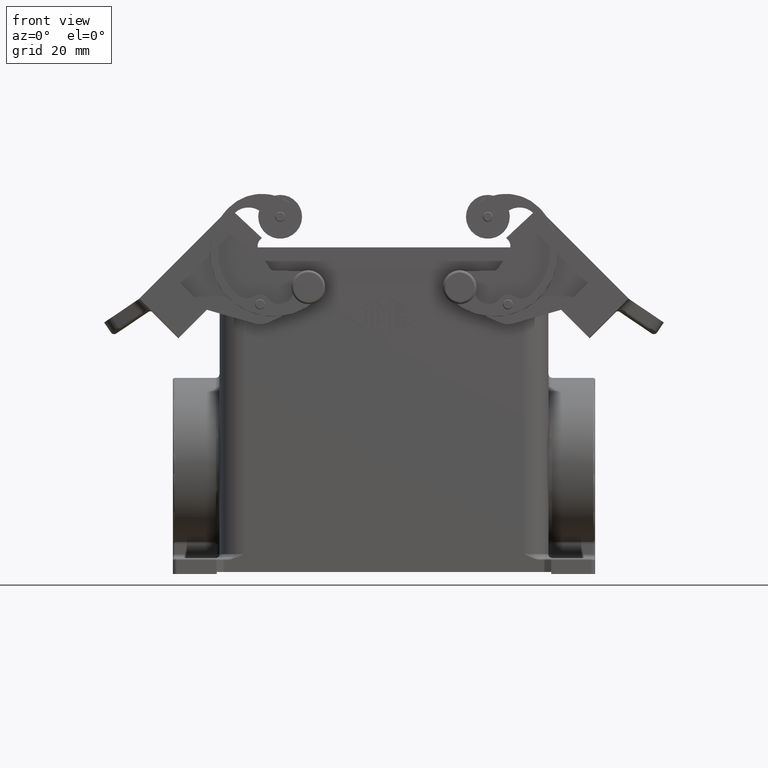
[diagram: clean part render]
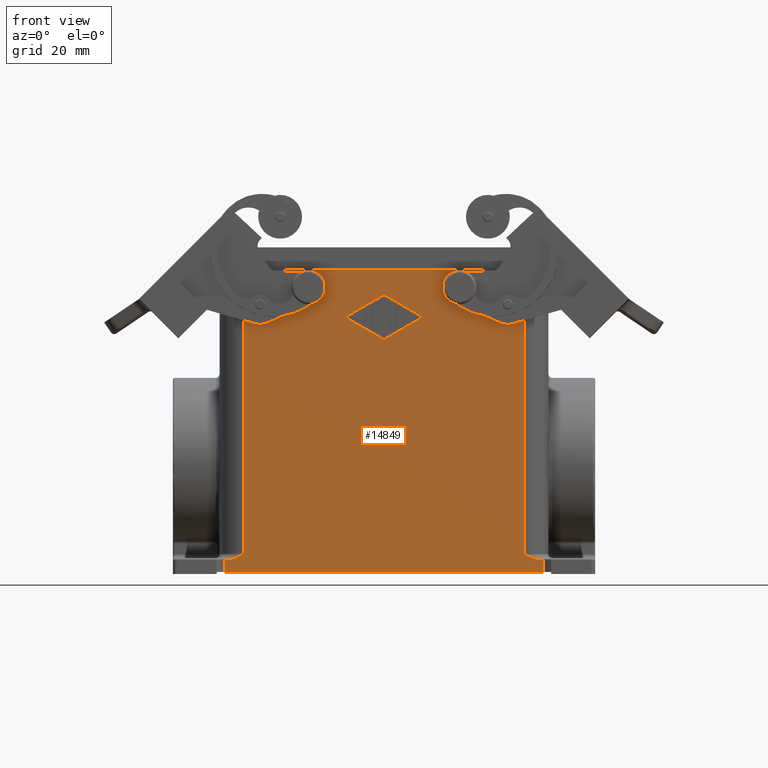
[diagram: same view with one face highlighted and labeled with its STEP entity id]
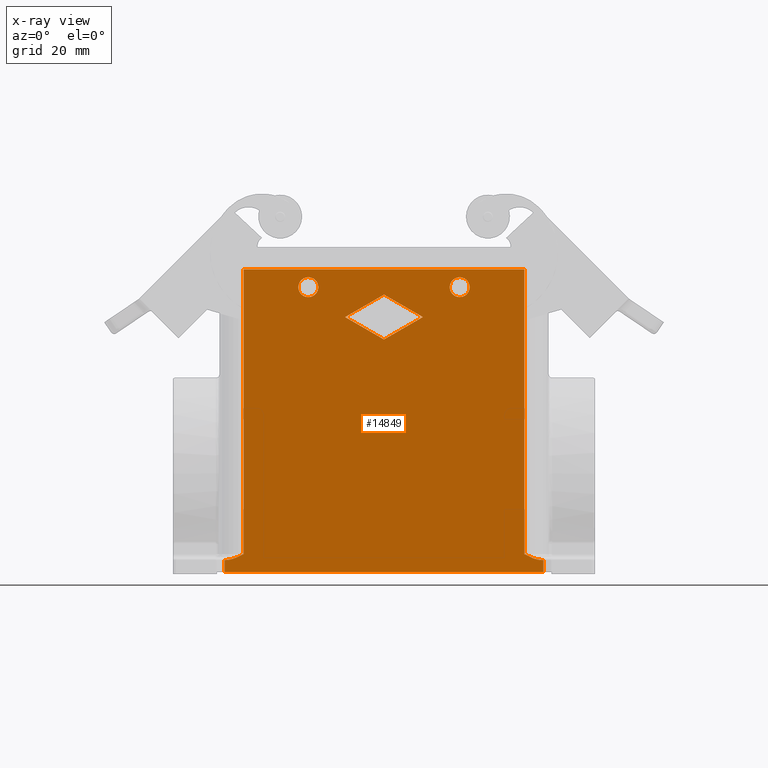
[diagram: x-ray of the same camera — body ghosted, the highlighted face saturated]
A machine part, front view. The second image highlights one B-rep face of the part: STEP entity #14849.
The next image is the same camera in x-ray: the body ghosted, the highlighted face saturated — about 0% of this face is hidden behind the body in this view.
In plain terms, the highlighted planar face has unit normal (0, -1, 0).
Its self-contained STEP definition (entity closure, byte-faithful):
#1136=CARTESIAN_POINT('',(-19.000000000000004,-27.649999999999991,22.0));
#1137=VERTEX_POINT('',#1136);
#1146=CARTESIAN_POINT('',(-19.000000000000004,-27.649999999999086,17.0));
#1147=VERTEX_POINT('',#1146);
#1148=CARTESIAN_POINT('',(-19.000000000000004,-27.649999999999991,19.500000000000000));
#1149=DIRECTION('',(0.0,1.0,3.626846E-013));
#1150=DIRECTION('',(0.0,-3.626846E-013,1.0));
#1151=AXIS2_PLACEMENT_3D('',#1148,#1149,#1150);
#1152=CIRCLE('',#1151,2.500000000000000);
#1153=EDGE_CURVE('',#1147,#1137,#1152,.T.);
#2407=CARTESIAN_POINT('',(19.000000000000004,-27.649999999999991,22.0));
#2408=VERTEX_POINT('',#2407);
#2417=CARTESIAN_POINT('',(19.000000000000004,-27.649999999999086,17.0));
#2418=VERTEX_POINT('',#2417);
#2419=CARTESIAN_POINT('',(19.000000000000004,-27.649999999999991,19.500000000000000));
#2420=DIRECTION('',(0.0,1.0,3.626846E-013));
#2421=DIRECTION('',(0.0,-3.626846E-013,1.0));
#2422=AXIS2_PLACEMENT_3D('',#2419,#2420,#2421);
#2423=CIRCLE('',#2422,2.500000000000000);
#2424=EDGE_CURVE('',#2418,#2408,#2423,.T.);
#9040=CARTESIAN_POINT('',(39.580127018922205,-27.649999999999991,-49.000000000000014));
#9041=VERTEX_POINT('',#9040);
#9049=CARTESIAN_POINT('',(39.999999999999993,-27.649999999999991,-49.000000000000014));
#9050=VERTEX_POINT('',#9049);
#9051=CARTESIAN_POINT('',(39.580127018922205,-27.649999999999991,-49.000000000000014));
#9052=DIRECTION('',(1.0,0.0,0.0));
#9053=VECTOR('',#9052,0.419872981077788);
#9054=LINE('',#9051,#9053);
#9055=EDGE_CURVE('',#9041,#9050,#9054,.T.);
#9671=CARTESIAN_POINT('',(-40.000000000000036,-27.650000000000002,-52.000000000000014));
#9672=VERTEX_POINT('',#9671);
#9680=CARTESIAN_POINT('',(-40.000000000000036,-27.650000000000006,-49.000000000000014));
#9681=VERTEX_POINT('',#9680);
#9682=CARTESIAN_POINT('',(-40.000000000000036,-27.650000000000002,-52.000000000000014));
#9683=DIRECTION('',(0.0,0.0,1.0));
#9684=VECTOR('',#9683,3.0);
#9685=LINE('',#9682,#9684);
#9686=EDGE_CURVE('',#9672,#9681,#9685,.T.);
#10923=CARTESIAN_POINT('',(-39.580127018922198,-27.650000000000006,-49.000000000000014));
#10924=VERTEX_POINT('',#10923);
#10925=CARTESIAN_POINT('',(-40.000000000000036,-27.650000000000006,-49.000000000000014));
#10926=DIRECTION('',(1.0,0.0,0.0));
#10927=VECTOR('',#10926,0.419872981077837);
#10928=LINE('',#10925,#10927);
#10929=EDGE_CURVE('',#9681,#10924,#10928,.T.);
#10992=CARTESIAN_POINT('',(-35.249999999999993,-27.650000000000006,-47.500000000000014));
#10993=VERTEX_POINT('',#10992);
#10994=CARTESIAN_POINT('',(-39.580127018922198,-27.650000000000006,-49.000000000000014));
#10995=CARTESIAN_POINT('',(-39.387759683819795,-27.650000000000006,-49.000000000000014));
#10996=CARTESIAN_POINT('',(-39.195205686228242,-27.650000000000006,-48.985904331566836));
#10997=CARTESIAN_POINT('',(-38.697237690833667,-27.650000000000006,-48.920340415720645));
#10998=CARTESIAN_POINT('',(-38.393379681325477,-27.650000000000006,-48.851450247678599));
#10999=CARTESIAN_POINT('',(-37.623310437845149,-27.650000000000006,-48.625605716058111));
#11000=CARTESIAN_POINT('',(-37.167194820397690,-27.650000000000006,-48.441192238088952));
#11001=CARTESIAN_POINT('',(-36.221236559212514,-27.650000000000006,-48.007439779020153));
#11002=CARTESIAN_POINT('',(-35.734263786464993,-27.650000000000006,-47.752898514435991));
#11003=CARTESIAN_POINT('',(-35.250000000000000,-27.650000000000006,-47.500000000000014));
#11004=B_SPLINE_CURVE_WITH_KNOTS('',3,(#10994,#10995,#10996,#10997,#10998,#10999,#11000,#11001,#11002,#11003),.UNSPECIFIED.,.F.,.U.,(4,2,2,2,4),(0.0,0.057710200530721,0.150046521379873,0.297784634738518,0.461681604245765),.UNSPECIFIED.);
#11005=EDGE_CURVE('',#10924,#10993,#11004,.T.);
#12228=CARTESIAN_POINT('',(35.250000000000000,-27.649999999999991,-47.500000000000014));
#12229=VERTEX_POINT('',#12228);
#12243=CARTESIAN_POINT('',(35.250000000000007,-27.649999999999991,-47.500000000000014));
#12244=CARTESIAN_POINT('',(35.734263910800728,-27.649999999999991,-47.752898579368086));
#12245=CARTESIAN_POINT('',(36.221235745168173,-27.649999999999991,-48.007439376338752));
#12246=CARTESIAN_POINT('',(37.167194230333386,-27.649999999999991,-48.441191994040942));
#12247=CARTESIAN_POINT('',(37.623309955738335,-27.649999999999991,-48.625605547628162));
#12248=CARTESIAN_POINT('',(38.393379380221418,-27.649999999999991,-48.851450176270397));
#12249=CARTESIAN_POINT('',(38.697237465468675,-27.649999999999991,-48.920340376758737));
#12250=CARTESIAN_POINT('',(39.195205587353641,-27.649999999999991,-48.985904324354763));
#12251=CARTESIAN_POINT('',(39.387759634428903,-27.649999999999991,-49.000000000000014));
#12252=CARTESIAN_POINT('',(39.580127018922205,-27.649999999999991,-49.000000000000014));
#12253=B_SPLINE_CURVE_WITH_KNOTS('',3,(#12243,#12244,#12245,#12246,#12247,#12248,#12249,#12250,#12251,#12252),.UNSPECIFIED.,.F.,.U.,(4,2,2,2,4),(-0.001048775446244,0.162848236142045,0.310586387432898,0.402922731989680,0.460632947337670),.UNSPECIFIED.);
#12254=EDGE_CURVE('',#12229,#9041,#12253,.T.);
#13389=CARTESIAN_POINT('',(35.250000000000000,-27.649999999999991,24.0));
#13390=VERTEX_POINT('',#13389);
#13398=CARTESIAN_POINT('',(35.250000000000000,-27.649999999999991,24.0));
#13399=DIRECTION('',(0.0,0.0,-1.0));
#13400=VECTOR('',#13399,71.500000000000014);
#13401=LINE('',#13398,#13400);
#13402=EDGE_CURVE('',#13390,#12229,#13401,.T.);
#14284=CARTESIAN_POINT('',(-35.249999999999993,-27.650000000000006,24.0));
#14285=VERTEX_POINT('',#14284);
#14286=CARTESIAN_POINT('',(-35.249999999999993,-27.650000000000006,24.0));
#14287=DIRECTION('',(0.0,0.0,-1.0));
#14288=VECTOR('',#14287,71.500000000000014);
#14289=LINE('',#14286,#14288);
#14290=EDGE_CURVE('',#14285,#10993,#14289,.T.);
#14421=CARTESIAN_POINT('',(39.999999999999993,-27.649999999999988,-52.000000000000014));
#14422=VERTEX_POINT('',#14421);
#14430=CARTESIAN_POINT('',(39.999999999999993,-27.649999999999988,-52.000000000000014));
#14431=DIRECTION('',(-1.0,0.0,0.0));
#14432=VECTOR('',#14431,80.000000000000028);
#14433=LINE('',#14430,#14432);
#14434=EDGE_CURVE('',#14422,#9672,#14433,.T.);
#14578=CARTESIAN_POINT('',(39.999999999999993,-27.649999999999991,-49.000000000000014));
#14579=DIRECTION('',(0.0,0.0,-1.0));
#14580=VECTOR('',#14579,3.0);
#14581=LINE('',#14578,#14580);
#14582=EDGE_CURVE('',#9050,#14422,#14581,.T.);
#14773=CARTESIAN_POINT('',(35.250000000000000,-27.649999999999991,1.500000000000000));
#14774=DIRECTION('',(0.0,-1.0,0.0));
#14775=DIRECTION('',(0.0,0.0,-1.0));
#14776=AXIS2_PLACEMENT_3D('',#14773,#14774,#14775);
#14777=PLANE('',#14776);
#14778=ORIENTED_EDGE('',*,*,#10929,.F.);
#14779=ORIENTED_EDGE('',*,*,#9686,.F.);
#14780=ORIENTED_EDGE('',*,*,#14434,.F.);
#14781=ORIENTED_EDGE('',*,*,#14582,.F.);
#14782=ORIENTED_EDGE('',*,*,#9055,.F.);
#14783=ORIENTED_EDGE('',*,*,#12254,.F.);
#14784=ORIENTED_EDGE('',*,*,#13402,.F.);
#14785=CARTESIAN_POINT('',(35.250000000000000,-27.649999999999991,24.0));
#14786=DIRECTION('',(-1.0,0.0,0.0));
#14787=VECTOR('',#14786,70.500000000000000);
#14788=LINE('',#14785,#14787);
#14789=EDGE_CURVE('',#13390,#14285,#14788,.T.);
#14790=ORIENTED_EDGE('',*,*,#14789,.T.);
#14791=ORIENTED_EDGE('',*,*,#14290,.T.);
#14792=ORIENTED_EDGE('',*,*,#11005,.F.);
#14793=EDGE_LOOP('',(#14778,#14779,#14780,#14781,#14782,#14783,#14784,#14790,#14791,#14792));
#14794=FACE_OUTER_BOUND('',#14793,.T.);
#14795=ORIENTED_EDGE('',*,*,#1153,.T.);
#14796=CARTESIAN_POINT('',(-19.000000000000004,-27.649999999999991,19.500000000000000));
#14797=DIRECTION('',(0.0,1.0,3.626846E-013));
#14798=DIRECTION('',(0.0,-3.626846E-013,1.0));
#14799=AXIS2_PLACEMENT_3D('',#14796,#14797,#14798);
#14800=CIRCLE('',#14799,2.500000000000000);
#14801=EDGE_CURVE('',#1137,#1147,#14800,.T.);
#14802=ORIENTED_EDGE('',*,*,#14801,.T.);
#14803=EDGE_LOOP('',(#14795,#14802));
#14804=FACE_BOUND('',#14803,.T.);
#14805=ORIENTED_EDGE('',*,*,#2424,.T.);
#14806=CARTESIAN_POINT('',(19.000000000000004,-27.649999999999991,19.500000000000000));
#14807=DIRECTION('',(0.0,1.0,3.626846E-013));
#14808=DIRECTION('',(0.0,-3.626846E-013,1.0));
#14809=AXIS2_PLACEMENT_3D('',#14806,#14807,#14808);
#14810=CIRCLE('',#14809,2.500000000000000);
#14811=EDGE_CURVE('',#2408,#2418,#14810,.T.);
#14812=ORIENTED_EDGE('',*,*,#14811,.T.);
#14813=EDGE_LOOP('',(#14805,#14812));
#14814=FACE_BOUND('',#14813,.T.);
#14815=CARTESIAN_POINT('',(1.131257E-015,-27.650000000000002,6.375000000000002));
#14816=VERTEX_POINT('',#14815);
#14817=CARTESIAN_POINT('',(-9.750000000000004,-27.650000000000002,12.000000000000002));
#14818=VERTEX_POINT('',#14817);
#14819=CARTESIAN_POINT('',(1.131257E-015,-27.650000000000002,6.375000000000002));
#14820=DIRECTION('',(-0.866185586048601,0.0,0.499722453489577));
#14821=VECTOR('',#14820,11.256248264852729);
#14822=LINE('',#14819,#14821);
#14823=EDGE_CURVE('',#14816,#14818,#14822,.T.);
#14824=ORIENTED_EDGE('',*,*,#14823,.T.);
#14825=CARTESIAN_POINT('',(1.665536E-016,-27.650000000000002,17.625000000000000));
#14826=VERTEX_POINT('',#14825);
#14827=CARTESIAN_POINT('',(-9.750000000000004,-27.650000000000002,12.000000000000002));
#14828=DIRECTION('',(0.866185586048601,0.0,0.499722453489577));
#14829=VECTOR('',#14828,11.256248264852728);
#14830=LINE('',#14827,#14829);
#14831=EDGE_CURVE('',#14818,#14826,#14830,.T.);
#14832=ORIENTED_EDGE('',*,*,#14831,.T.);
#14833=CARTESIAN_POINT('',(9.749999999999998,-27.650000000000002,12.000000000000002));
#14834=VERTEX_POINT('',#14833);
#14835=CARTESIAN_POINT('',(1.665536E-016,-27.650000000000002,17.625000000000000));
#14836=DIRECTION('',(0.866185586048600,0.0,-0.499722453489577));
#14837=VECTOR('',#14836,11.256248264852724);
#14838=LINE('',#14835,#14837);
#14839=EDGE_CURVE('',#14826,#14834,#14838,.T.);
#14840=ORIENTED_EDGE('',*,*,#14839,.T.);
#14841=CARTESIAN_POINT('',(9.749999999999998,-27.650000000000002,12.000000000000002));
#14842=DIRECTION('',(-0.866185586048600,0.0,-0.499722453489577));
#14843=VECTOR('',#14842,11.256248264852722);
#14844=LINE('',#14841,#14843);
#14845=EDGE_CURVE('',#14834,#14816,#14844,.T.);
#14846=ORIENTED_EDGE('',*,*,#14845,.T.);
#14847=EDGE_LOOP('',(#14824,#14832,#14840,#14846));
#14848=FACE_BOUND('',#14847,.T.);
#14849=ADVANCED_FACE('',(#14794,#14804,#14814,#14848),#14777,.T.);